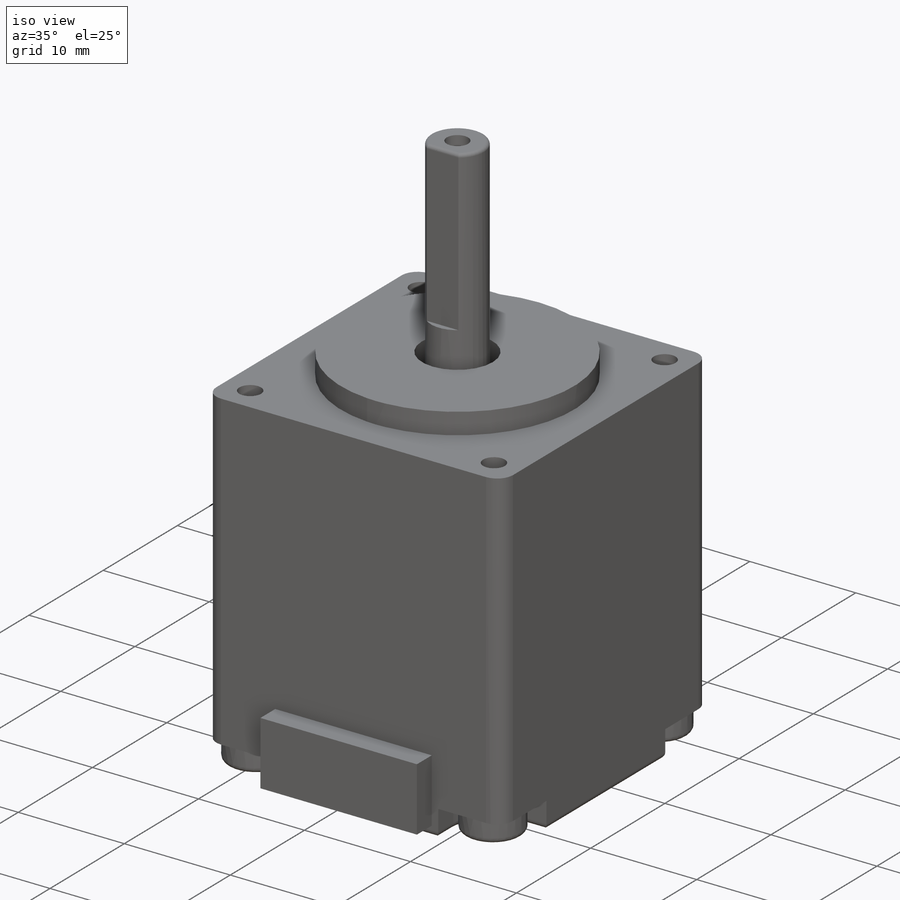
[diagram: iso view]
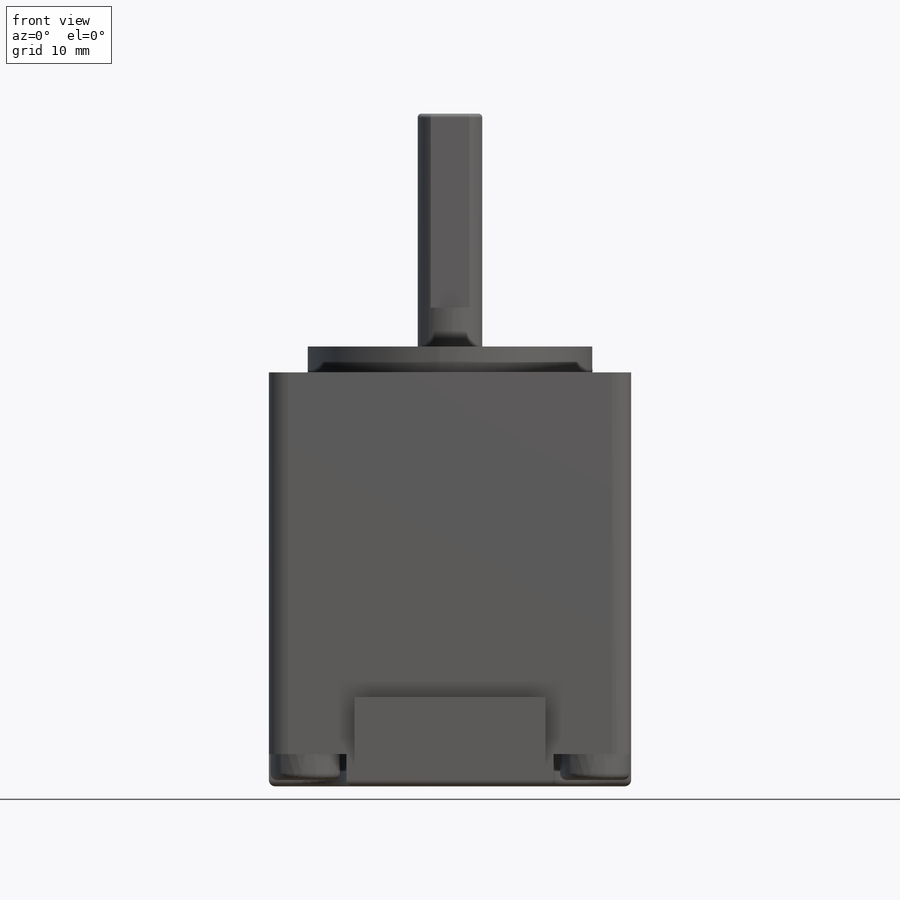
[diagram: front view]
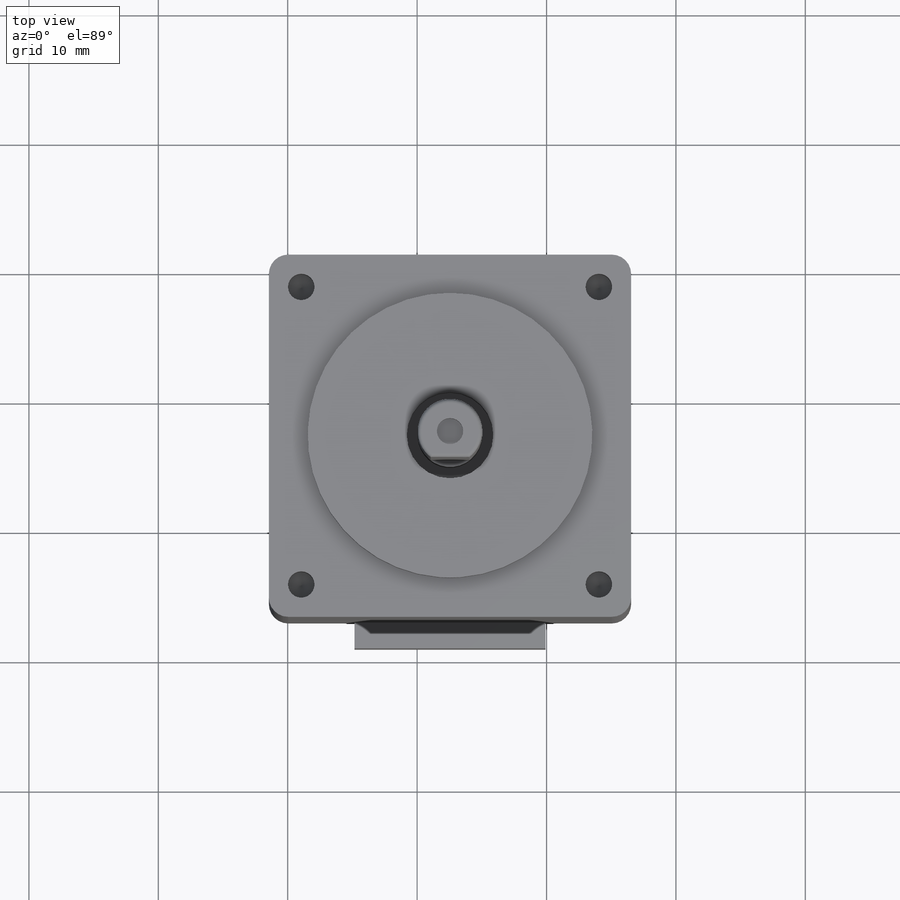
[diagram: top view]
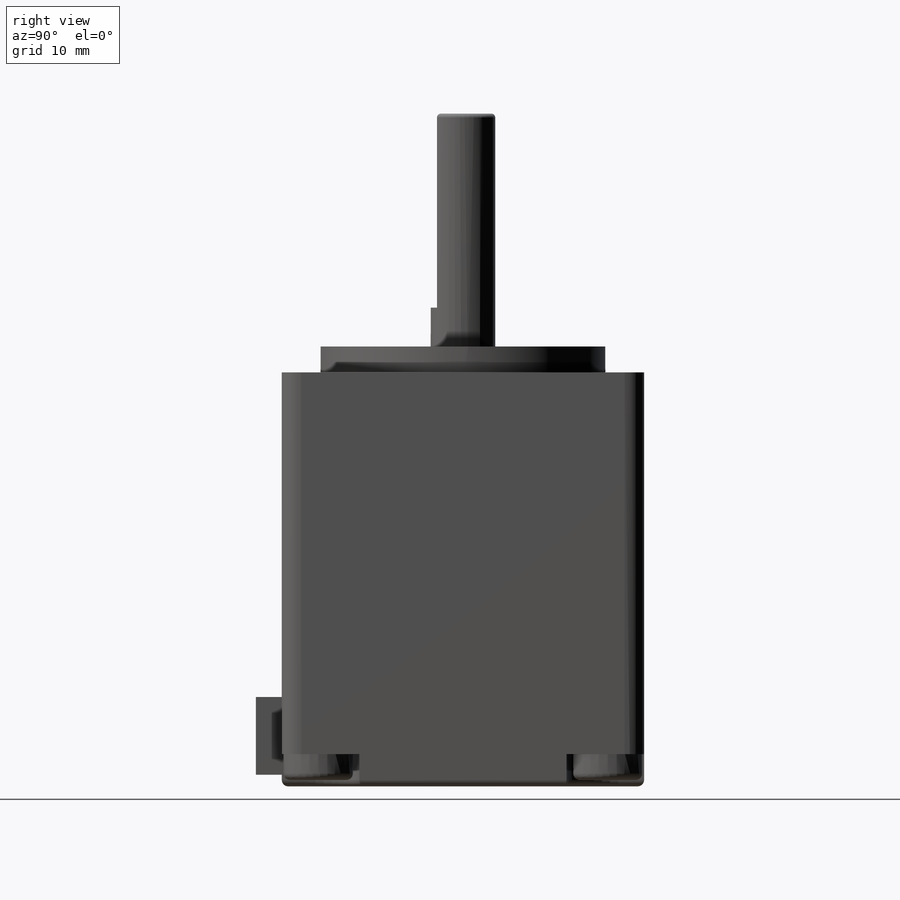
[diagram: right view]
SOLIDWORKS PART (.sldprt)
format: sldprt  version: not decoded by parser v0  size: 721,920 bytes
history: native  units: mm
features: sketch x28, cut_extrude x17, extrude x6, fillet x4, hole x2, material x1 (+12 scaffold rows collapsed)
feature tree (70):
  scaffold x12  (default folders/planes/origin — collapsed)
  material  "Material <not specified>"
  sketch  "Sketch1"  dims[D1=28.0mm D2=28.0mm]
  extrude  "Boss-Extrude1"  Depth=32mm
  fillet  "Fillet1"  Radius=1.5mm
  sketch  "Sketch5"  dims[D1=22.0mm]
  sketch  "Sketch6"  dims[D1=13.0mm]
  extrude  "Boss-Extrude2"  Depth=20mm
  sketch  "Sketch9"  dims[D1=4.5mm]
  sketch  "Sketch10"  dims[c1.D1=~2.987748mm c2.D1=360.0deg c3.D1=~2.987748mm]
  cut_extrude  "Cut-Extrude4"  Depth=15mm
  extrude  "Boss-Extrude3"  Depth=2mm
  sketch  "Sketch15"  dims[D3=9.0mm D1=23.0mm D2=23.0mm]
  hole  "Tap Drill for M2.5x0.45 Tap1"  Diameter=2.05mm Depth=3.5mm
  sketch  "Sketch17"
  sketch  "Sketch16"  dims[hole-wizard template sketch: 47 standard entries collapsed; hole parameters kept: c15.Hole Depth=3.5mm c15.D3=~14.816244mm c15.Drill Angle=118.0deg]
  sketch  "Sketch20"  dims[D1=0.8375mm]
  cut_extrude  "Cut-Extrude13"  Depth=3mm
  sketch  "Sketch23"  dims[D1=~2.344243mm]
  extrude  "Boss-Extrude4"  Depth=3mm
  sketch  "Sketch24"  dims[c1.D1=4.0mm c1.D2=4.0mm c1.D3=9.0mm c2.D1=3.0mm c2.D2=6.0mm c3.D1=6.0mm c3.D3=6.0mm c3.D4=6.0mm c3.D5=6.0mm c3.D2=6.0mm]
  cut_extrude  "Cut-Extrude14"  Depth=2.5mm
  cut_extrude  "Cut-Extrude17"  [1 undecoded]
  sketch  "Sketch24<6>"  dims[D19=2.5mm]
  cut_extrude  "Cut-Extrude18"  [1 undecoded]
  sketch  "Sketch24<7>"  dims[D19=2.5mm]
  cut_extrude  "Cut-Extrude19"  [1 undecoded]
  sketch  "Sketch24<8>"  dims[D19=2.5mm]
  cut_extrude  "Cut-Extrude20"  [1 undecoded]
  sketch  "Sketch24<10>"  dims[D1=2.5mm]
  sketch  "Sketch33"  dims[D1=~1.519876mm]
  cut_extrude  "Cut-Extrude21"  Depth=5mm
  sketch  "Sketch35"  dims[c1.D1=9.0mm c1.D2=9.0mm c2.D1=6.0mm]
  extrude  "Boss-Extrude5"  Depth=2mm
  fillet  "Fillet2"  Radius=0.3mm
  fillet  "Fillet3"  Radius=0.5mm
  hole  "Axis5"  [1 undecoded]
  sketch  "Sketch36"  dims[D1=~2.340515mm]
  extrude  "Boss-Extrude6"  Depth=2mm
  fillet  "Fillet4"  Radius=0.5mm
  sketch  "Sketch38"  dims[D1=0.62mm]
  sketch  "Sketch39"
  cut_extrude  "Cut-Extrude22"  Depth=1mm
  cut_extrude  "Cut-Extrude23"  [1 undecoded]
  sketch  "Sketch38<3>"  dims[D1=1.0mm]
  sketch  "Sketch43"  dims[D1=2.53mm]
  cut_extrude  "Cut-Extrude24"  Depth=1mm
  cut_extrude  "Cut-Extrude25"  [1 undecoded]
  sketch  "Sketch43<3>"  dims[D1=1.0mm]
  sketch  "Sketch45"  dims[D1=2.53mm]
  cut_extrude  "Cut-Extrude26"  Depth=1mm
  cut_extrude  "Cut-Extrude27"  [1 undecoded]
  sketch  "Sketch45<3>"  dims[D1=1.0mm]
  sketch  "Sketch46"
  cut_extrude  "Cut-Extrude28"  Depth=1mm
  cut_extrude  "Cut-Extrude29"  [1 undecoded]
  sketch  "Sketch46<3>"  dims[D1=1.0mm]
  sketch  "Sketch49"
  cut_extrude  "Cut-Extrude30"  Depth=2mm
decode coverage: 44 of 57 modeling features carry decoded parameters
note: ~ marks probable driven/reference dimensions
note: 9 parameter values undecoded
summary: no parameter record found for 9 features
note: suppression state not decoded; provenance and decode notes live in map.json
